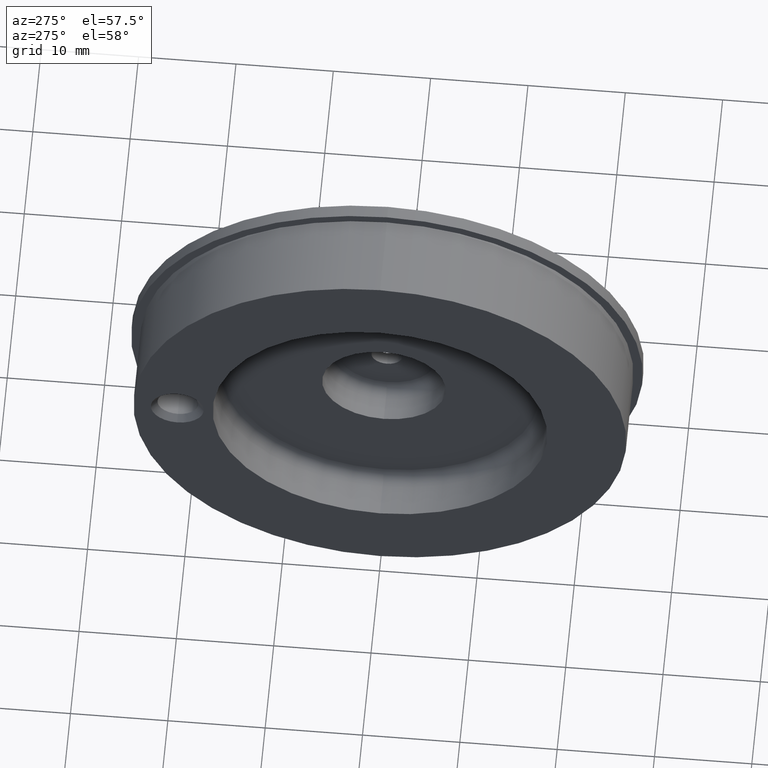
[diagram: clean part render]
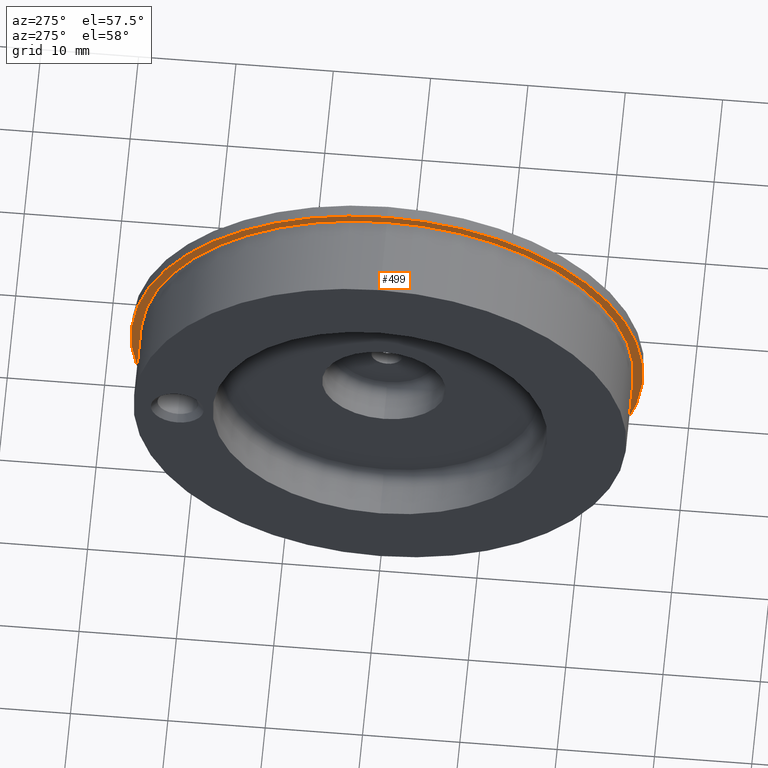
[diagram: same view with one face highlighted and labeled with its STEP entity id]
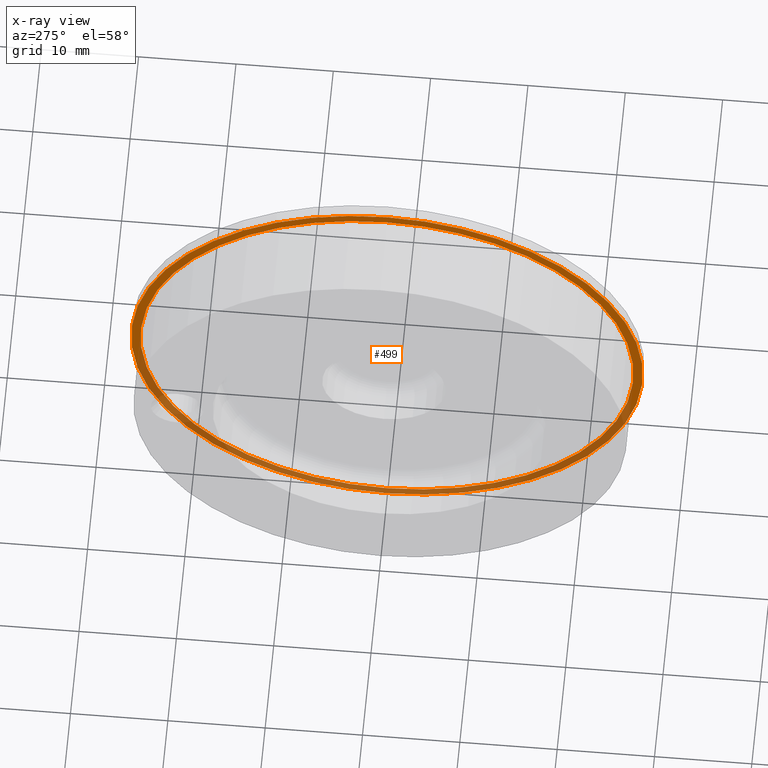
[diagram: x-ray of the same camera — body ghosted, the highlighted face saturated]
A machine part, auxiliary view. The second image highlights one B-rep face of the part: STEP entity #499.
The next image is the same camera in x-ray: the body ghosted, the highlighted face saturated — about 44% of this face is hidden behind the body in this view.
In plain terms, the highlighted planar face has unit normal (-1, 0, 0).
Its self-contained STEP definition (entity closure, byte-faithful):
#1 = DIRECTION ( 'NONE',  ( 0.0000000000000000000, 0.0000000000000000000, -1.000000000000000000 ) ) ;
#7 = DIRECTION ( 'NONE',  ( 0.0000000000000000000, 0.0000000000000000000, -1.000000000000000000 ) ) ;
#33 = CARTESIAN_POINT ( 'NONE',  ( -0.05000000000000006500, 0.0000000000000000000, 0.0000000000000000000 ) ) ;
#43 = CARTESIAN_POINT ( 'NONE',  ( -0.05000000000000006500, 0.0000000000000000000, 0.0000000000000000000 ) ) ;
#45 = DIRECTION ( 'NONE',  ( 0.0000000000000000000, 0.0000000000000000000, -1.000000000000000000 ) ) ;
#110 = DIRECTION ( 'NONE',  ( 0.0000000000000000000, 0.0000000000000000000, -1.000000000000000000 ) ) ;
#129 = CARTESIAN_POINT ( 'NONE',  ( -0.05000000000000005800, 0.0000000000000000000, 0.0000000000000000000 ) ) ;
#135 = DIRECTION ( 'NONE',  ( 1.000000000000000000, -0.0000000000000000000, -0.0000000000000000000 ) ) ;
#147 = DIRECTION ( 'NONE',  ( 1.000000000000000000, -0.0000000000000000000, -0.0000000000000000000 ) ) ;
#172 = CARTESIAN_POINT ( 'NONE',  ( -0.05000000000000005800, 0.0000000000000000000, 0.0000000000000000000 ) ) ;
#174 = DIRECTION ( 'NONE',  ( 1.000000000000000000, -0.0000000000000000000, -0.0000000000000000000 ) ) ;
#176 = DIRECTION ( 'NONE',  ( 1.000000000000000000, -0.0000000000000000000, -0.0000000000000000000 ) ) ;
#189 = ORIENTED_EDGE ( 'NONE', *, *, #632, .F. ) ;
#208 = ORIENTED_EDGE ( 'NONE', *, *, #575, .T. ) ;
#231 = CIRCLE ( 'NONE', #517, 0.9970000000000000000 ) ;
#234 = VERTEX_POINT ( 'NONE', #706 ) ;
#255 = ORIENTED_EDGE ( 'NONE', *, *, #600, .T. ) ;
#257 = VERTEX_POINT ( 'NONE', #675 ) ;
#295 = FACE_OUTER_BOUND ( 'NONE', #433, .T. ) ;
#333 = CIRCLE ( 'NONE', #520, 1.034999999999999900 ) ;
#352 = EDGE_LOOP ( 'NONE', ( #255, #208 ) ) ;
#379 = CIRCLE ( 'NONE', #560, 0.9970000000000000000 ) ;
#402 = FACE_BOUND ( 'NONE', #352, .T. ) ;
#410 = VERTEX_POINT ( 'NONE', #703 ) ;
#417 = ORIENTED_EDGE ( 'NONE', *, *, #595, .F. ) ;
#433 = EDGE_LOOP ( 'NONE', ( #417, #189 ) ) ;
#455 = CIRCLE ( 'NONE', #542, 1.034999999999999900 ) ;
#459 = VERTEX_POINT ( 'NONE', #725 ) ;
#499 = ADVANCED_FACE ( 'NONE', ( #402, #295 ), #663, .T. ) ;
#517 = AXIS2_PLACEMENT_3D ( 'NONE', #129, #176, #45 ) ;
#520 = AXIS2_PLACEMENT_3D ( 'NONE', #43, #135, #1 ) ;
#542 = AXIS2_PLACEMENT_3D ( 'NONE', #33, #174, #110 ) ;
#560 = AXIS2_PLACEMENT_3D ( 'NONE', #172, #147, #7 ) ;
#575 = EDGE_CURVE ( 'NONE', #459, #257, #379, .T. ) ;
#595 = EDGE_CURVE ( 'NONE', #410, #234, #455, .T. ) ;
#600 = EDGE_CURVE ( 'NONE', #257, #459, #231, .T. ) ;
#619 = AXIS2_PLACEMENT_3D ( 'NONE', #712, #720, #661 ) ;
#632 = EDGE_CURVE ( 'NONE', #234, #410, #333, .T. ) ;
#661 = DIRECTION ( 'NONE',  ( 0.0000000000000000000, 0.0000000000000000000, 1.000000000000000000 ) ) ;
#663 = PLANE ( 'NONE',  #619 ) ;
#675 = CARTESIAN_POINT ( 'NONE',  ( -0.05000000000000005800, 0.0000000000000000000, -0.9970000000000000000 ) ) ;
#703 = CARTESIAN_POINT ( 'NONE',  ( -0.05000000000000006500, 0.0000000000000000000, -1.034999999999999900 ) ) ;
#706 = CARTESIAN_POINT ( 'NONE',  ( -0.05000000000000006500, 1.267509437117510400E-016, 1.034999999999999900 ) ) ;
#712 = CARTESIAN_POINT ( 'NONE',  ( -0.05000000000000006500, 1.034999999999999900, 0.0000000000000000000 ) ) ;
#720 = DIRECTION ( 'NONE',  ( -1.000000000000000000, 0.0000000000000000000, 0.0000000000000000000 ) ) ;
#725 = CARTESIAN_POINT ( 'NONE',  ( -0.05000000000000005800, 1.220972858749911300E-016, 0.9970000000000000000 ) ) ;